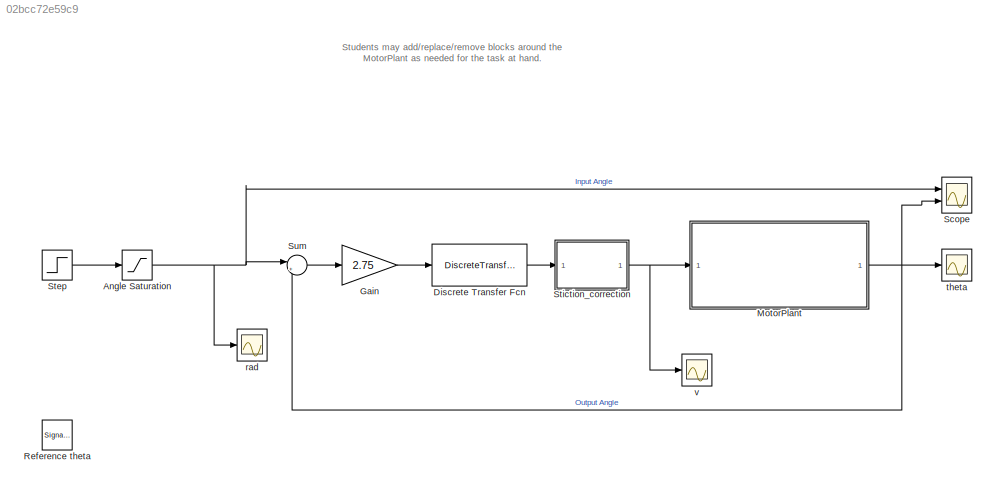
MODEL slx_02bcc72e59c9
KIND model
CONFIG AbsTol = auto
CONFIG EnableMultiTasking = off
CONFIG FixedStep = 0.001
CONFIG MaxStep = auto
CONFIG MinStep = auto
CONFIG RelTol = 1e-3
CONFIG SampleTimeConstraint = Unconstrained
CONFIG Solver = FixedStepAuto
CONFIG SolverName = FixedStepAuto
CONFIG StartTime = 0.0
CONFIG StopTime = 2
BLOCK [Saturate] Angle Saturation
  InputPortMap = u0
  LowerLimit = -0.7
  Ports = [1, 1]
  UpperLimit = 0.7
BLOCK [DiscreteTransferFcn] Discrete Transfer Fcn
  Denominator = [3.08 0.08]
  InputPortMap = u0
  Numerator = [4.7 0.7]
  Ports = [1, 1]
  SampleTime = 0.03
BLOCK [Gain] Gain
  Gain = 2.75
  OutDataTypeStr = Inherit: Inherit via internal rule
  ParamDataTypeStr = Inherit: Inherit via internal rule
  SaturateOnIntegerOverflow = off
BLOCK [ModelReference] MotorPlant
  CopyOfModelProtected = on
  ModelNameDialog = MotorPlant_23S
  ModelReferenceVersion = 1.41
  Ports = [1, 1]
BLOCK [SignalGenerator] Reference theta
  Amplitude = 45
  Frequency = 0.5
  Ports = [0, 1]
  WaveForm = square
BLOCK [Scope] Scope
  Floating = off
  NumInputPorts = 2
  Ports = [2]
  ScopeSpecificationString = Simulink.scopes.TimeScopeBlockCfg('CurrentConfiguration', extmgr.ConfigurationSet(extmgr.Configuration('Core','General UI',true,'FigureColor',[0 0 0]),extmgr.Configuration('Core','Source UI',true),extmgr.Configuration('Sources','WiredSimulink',true,'DataLogging',true,'DataLoggingLimitDataPoints',true,'DataLoggingMaxPoints','10000','SampleTime','0.001'),extmgr.Configuration('Visuals','Time Domain',...<+1743ch>
BLOCK [Step] Step
  After = 0.7
  Before = -0.7
  SampleTime = 0
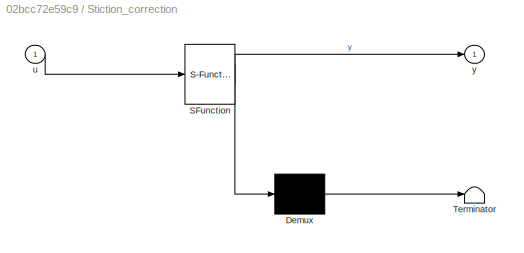
BLOCK [SubSystem] Stiction_correction
  ErrorFcn = Stateflow.Translate.translate
  PermitHierarchicalResolution = ExplicitOnly
  Ports = [1, 1]
  RequestExecContextInheritance = off
  SFBlockType = MATLAB Function
  TreatAsAtomicUnit = on
BLOCK [Demux] Stiction_correction/ Demux 
  Outputs = 1
  Ports = [1, 1]
BLOCK [S-Function] Stiction_correction/ SFunction 
  EnableBusSupport = on
  FunctionName = sf_sfun
  PortCounts = [1 2]
  Ports = [1, 2]
  SFcnIsStateOwnerBlock = off
  SFunctionDeploymentMode = off
  Tag = Stateflow S-Function 2
BLOCK [Terminator] Stiction_correction/ Terminator 
BLOCK [Inport] Stiction_correction/u
  IconDisplay = Port number
BLOCK [Outport] Stiction_correction/y
  IconDisplay = Port number
BLOCK [Sum] Sum
  IconShape = round
  InputSameDT = off
  Inputs = |+-
  OutDataTypeStr = Inherit: Inherit via internal rule
  Ports = [2, 1]
  SaturateOnIntegerOverflow = off
BLOCK [Scope] rad
  Floating = off
  NumInputPorts = 1
  Ports = [1]
  ScopeSpecificationString = Simulink.scopes.TimeScopeBlockCfg('CurrentConfiguration', extmgr.ConfigurationSet(extmgr.Configuration('Core','General UI',true),extmgr.Configuration('Core','Source UI',true),extmgr.Configuration('Sources','WiredSimulink',true,'DataLoggingVariableName','rad','DataLogging',true,'DataLoggingSaveFormat','Array'),extmgr.Configuration('Visuals','Time Domain',true,'SerializedDisplays',{struct('MinYLimRe...<+1421ch>
BLOCK [Scope] theta
  Floating = off
  NumInputPorts = 1
  Ports = [1]
  ScopeSpecificationString = Simulink.scopes.TimeScopeBlockCfg('CurrentConfiguration', extmgr.ConfigurationSet(extmgr.Configuration('Core','General UI',true),extmgr.Configuration('Core','Source UI',true),extmgr.Configuration('Sources','WiredSimulink',true,'DataLoggingVariableName','theta','DataLogging',true,'DataLoggingSaveFormat','Array'),extmgr.Configuration('Visuals','Time Domain',true,'SerializedDisplays',{struct('MinYLim...<+1449ch>
BLOCK [Scope] v
  Floating = off
  NumInputPorts = 1
  Ports = [1]
  ScopeSpecificationString = Simulink.scopes.TimeScopeBlockCfg('CurrentConfiguration', extmgr.ConfigurationSet(extmgr.Configuration('Core','General UI',true),extmgr.Configuration('Core','Source UI',true),extmgr.Configuration('Sources','WiredSimulink',true,'DataLoggingVariableName','ScopeData1'),extmgr.Configuration('Visuals','Time Domain',true,'SerializedDisplays',{struct('MinYLimReal','-4.1611','MaxYLimReal','7.11477','YLabe...<+1626ch>
ANNOTATION (root): Students may add/replace/remove blocks around the MotorPlant as needed for the task at hand.
NET Angle Saturation:1 -> Scope:1, Sum:1, rad:1
LINE Discrete Transfer Fcn:1 -> Stiction_correction:1
LINE Gain:1 -> Discrete Transfer Fcn:1
NET MotorPlant:1 -> Scope:2, Sum:2, theta:1
LINE Step:1 -> Angle Saturation:1
NET Stiction_correction:1 -> MotorPlant:1, v:1
LINE Sum:1 -> Gain:1
note: NET lines group one-source signal fan-out (src -> all destinations, sorted); 1:1 wires keep LINE
CHART Stiction_correction states=1 transitions=1
  STATE_LABEL 'eML_blk_kernel()'
  STATE_LABEL 'SCRIPT:\nfunction y = fcn(u)\n\na = -0.48;\nb = 0.50;\n\nif u < b && u > 0\n    y = u + b;\nelseif u > a && u < 0\n    y = u + a;\nelse\n    y = u;\n\nend\n'
